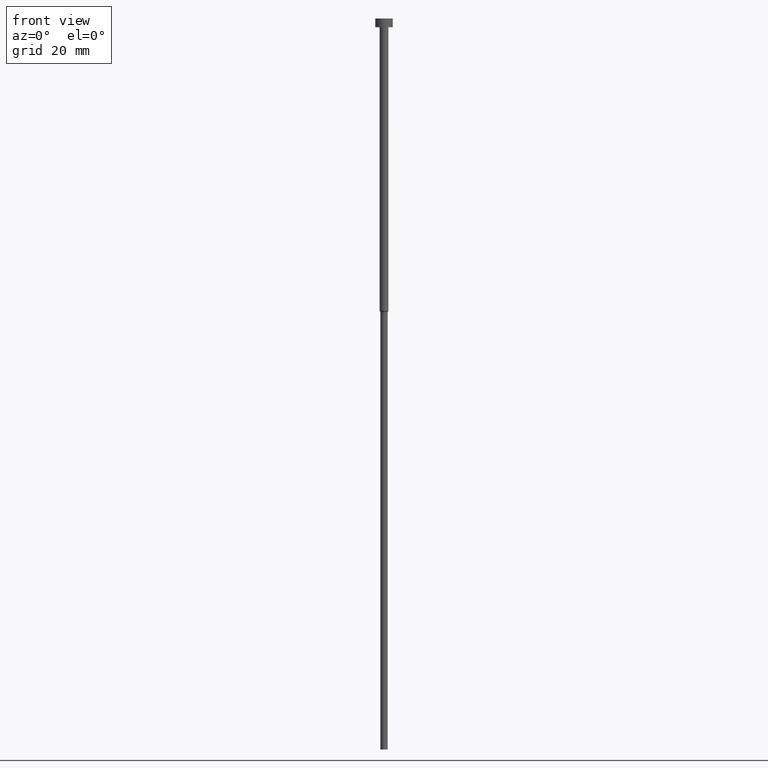
[diagram: clean part render]
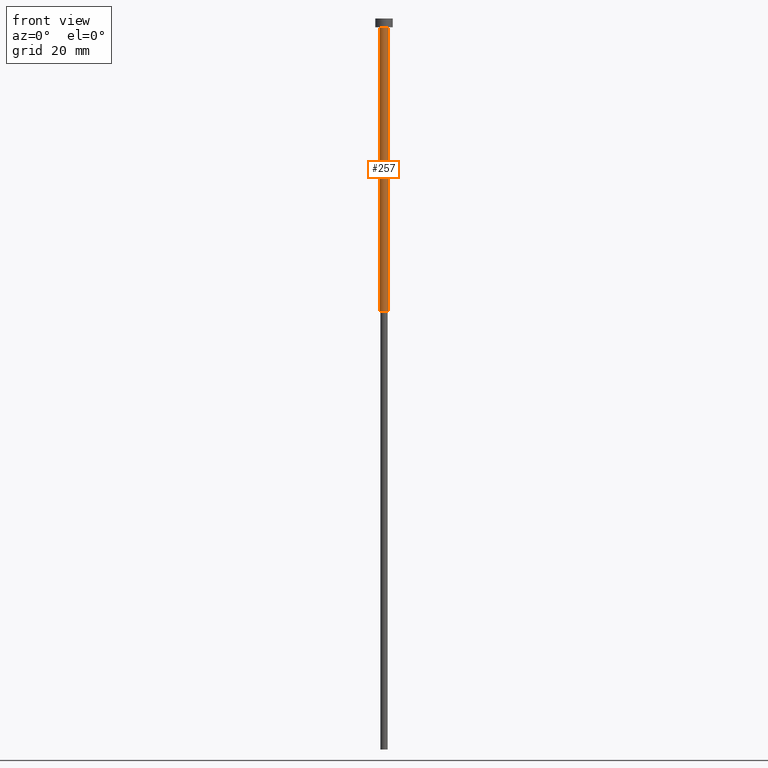
[diagram: same view with one face highlighted and labeled with its STEP entity id]
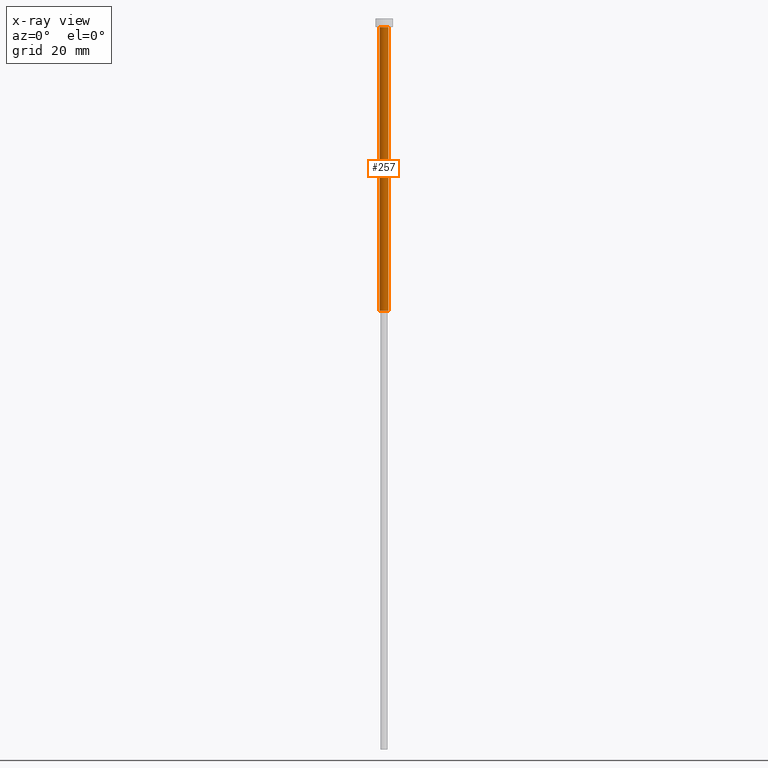
[diagram: x-ray of the same camera — body ghosted, the highlighted face saturated]
A machine part, front view. The second image highlights one B-rep face of the part: STEP entity #257.
The next image is the same camera in x-ray: the body ghosted, the highlighted face saturated — about 0% of this face is hidden behind the body in this view.
In plain terms, the highlighted cylindrical surface (edge-blend (fillet) strip) has radius 1.5 mm, axis along (-0, -0, 1).
Its self-contained STEP definition (entity closure, byte-faithful):
#1 = CARTESIAN_POINT ( 'NONE',  ( -1.500000000000000000, 1.836970198721029934E-16, 0.000000000000000000 ) ) ;
#11 = VECTOR ( 'NONE', #331, 1000.000000000000000 ) ;
#32 = CARTESIAN_POINT ( 'NONE',  ( 1.500000000000000000, 0.000000000000000000, -100.0000000000000000 ) ) ;
#37 = EDGE_CURVE ( 'NONE', #157, #188, #290, .T. ) ;
#52 = EDGE_LOOP ( 'NONE', ( #320, #245, #159, #219 ) ) ;
#64 = CARTESIAN_POINT ( 'NONE',  ( 1.500000000000000000, 0.000000000000000000, 0.000000000000000000 ) ) ;
#66 = LINE ( 'NONE', #1, #166 ) ;
#68 = DIRECTION ( 'NONE',  ( -0.000000000000000000, -0.000000000000000000, 1.000000000000000000 ) ) ;
#83 = AXIS2_PLACEMENT_3D ( 'NONE', #335, #68, #148 ) ;
#86 = CIRCLE ( 'NONE', #108, 1.500000000000000000 ) ;
#91 = LINE ( 'NONE', #64, #11 ) ;
#108 = AXIS2_PLACEMENT_3D ( 'NONE', #303, #355, #115 ) ;
#115 = DIRECTION ( 'NONE',  ( 1.000000000000000000, 0.000000000000000000, 0.000000000000000000 ) ) ;
#117 = DIRECTION ( 'NONE',  ( -0.000000000000000000, -0.000000000000000000, 1.000000000000000000 ) ) ;
#119 = EDGE_CURVE ( 'NONE', #316, #188, #91, .T. ) ;
#126 = CARTESIAN_POINT ( 'NONE',  ( 0.000000000000000000, 0.000000000000000000, -3.000000000000000888 ) ) ;
#148 = DIRECTION ( 'NONE',  ( 1.000000000000000000, 0.000000000000000000, 0.000000000000000000 ) ) ;
#157 = VERTEX_POINT ( 'NONE', #327 ) ;
#159 = ORIENTED_EDGE ( 'NONE', *, *, #119, .T. ) ;
#162 = EDGE_CURVE ( 'NONE', #325, #316, #86, .T. ) ;
#166 = VECTOR ( 'NONE', #117, 1000.000000000000000 ) ;
#188 = VERTEX_POINT ( 'NONE', #300 ) ;
#206 = CARTESIAN_POINT ( 'NONE',  ( -1.500000000000000000, 1.836970198721029934E-16, -100.0000000000000000 ) ) ;
#209 = AXIS2_PLACEMENT_3D ( 'NONE', #126, #240, #266 ) ;
#219 = ORIENTED_EDGE ( 'NONE', *, *, #37, .F. ) ;
#240 = DIRECTION ( 'NONE',  ( -0.000000000000000000, -0.000000000000000000, 1.000000000000000000 ) ) ;
#245 = ORIENTED_EDGE ( 'NONE', *, *, #162, .T. ) ;
#255 = FACE_OUTER_BOUND ( 'NONE', #52, .T. ) ;
#257 = ADVANCED_FACE ( 'NONE', ( #255 ), #286, .T. ) ;
#266 = DIRECTION ( 'NONE',  ( 1.000000000000000000, 0.000000000000000000, 0.000000000000000000 ) ) ;
#286 = CYLINDRICAL_SURFACE ( 'NONE', #83, 1.500000000000000000 ) ;
#290 = CIRCLE ( 'NONE', #209, 1.500000000000000000 ) ;
#300 = CARTESIAN_POINT ( 'NONE',  ( 1.500000000000000000, 0.000000000000000000, -3.000000000000000888 ) ) ;
#303 = CARTESIAN_POINT ( 'NONE',  ( 0.000000000000000000, 0.000000000000000000, -100.0000000000000000 ) ) ;
#316 = VERTEX_POINT ( 'NONE', #32 ) ;
#320 = ORIENTED_EDGE ( 'NONE', *, *, #350, .F. ) ;
#325 = VERTEX_POINT ( 'NONE', #206 ) ;
#327 = CARTESIAN_POINT ( 'NONE',  ( -1.500000000000000000, 1.836970198721029934E-16, -3.000000000000000888 ) ) ;
#331 = DIRECTION ( 'NONE',  ( -0.000000000000000000, -0.000000000000000000, 1.000000000000000000 ) ) ;
#335 = CARTESIAN_POINT ( 'NONE',  ( 0.000000000000000000, 0.000000000000000000, 0.000000000000000000 ) ) ;
#350 = EDGE_CURVE ( 'NONE', #325, #157, #66, .T. ) ;
#355 = DIRECTION ( 'NONE',  ( -0.000000000000000000, -0.000000000000000000, 1.000000000000000000 ) ) ;